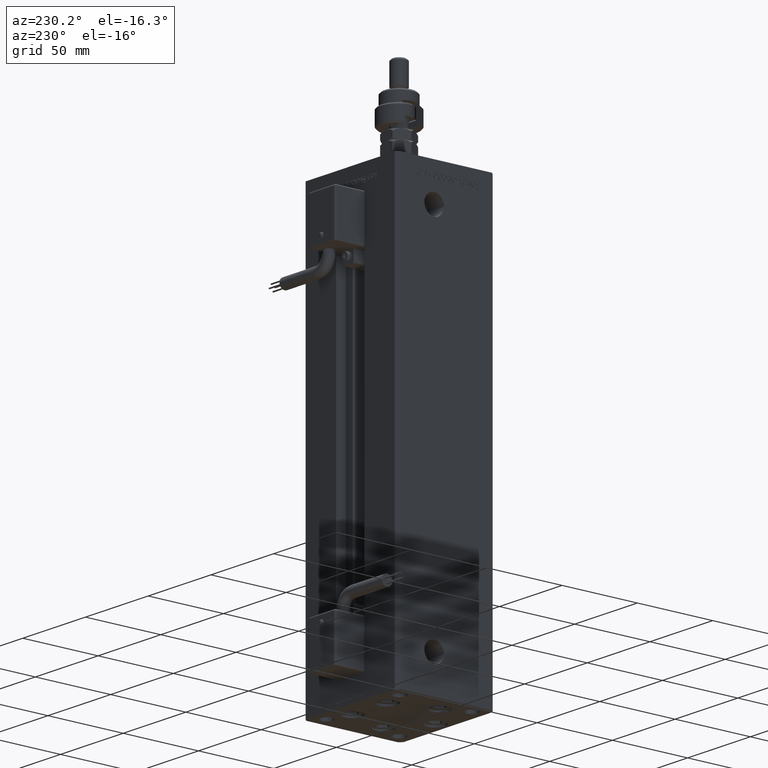
[diagram: clean part render]
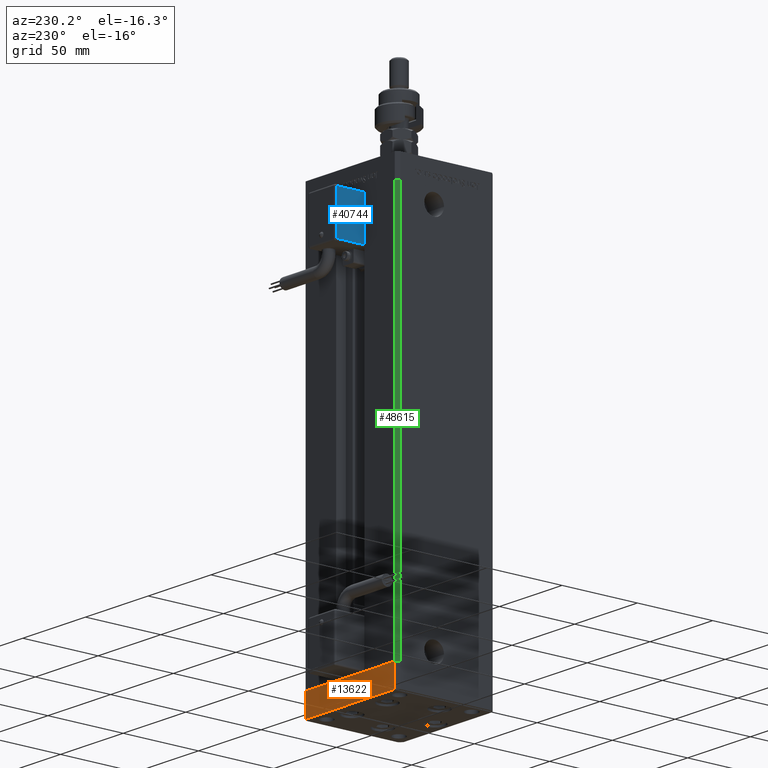
[diagram: same view with three faces highlighted in distinct colors, each labeled with its STEP entity id]
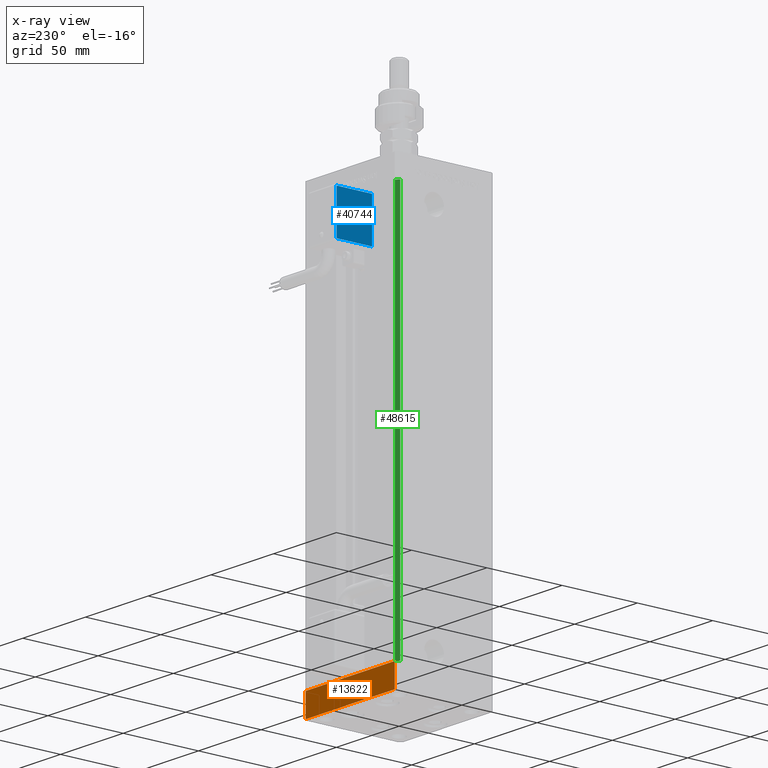
[diagram: x-ray of the same camera — body ghosted, the three highlighted faces saturated]
A machine part, auxiliary view with three faces highlighted in distinct colors.
The next image is the same camera in x-ray (body ghosted, the three faces saturated) — at least one of them is partly hidden behind the body in this view.
Their STEP definitions:

[orange] entity #13622 — the highlighted planar face has unit normal (0, 1, 0).
#666 = ORIENTED_EDGE ( 'NONE', *, *, #32265, .T. ) ;
#1304 = DIRECTION ( 'NONE',  ( 0.000000000000000000, 0.000000000000000000, 1.000000000000000000 ) ) ;
#4280 = EDGE_CURVE ( 'NONE', #51668, #8180, #35280, .T. ) ;
#5709 = CARTESIAN_POINT ( 'NONE',  ( 35.49999999999992184, 32.50000000000000711, -15.00000000000000000 ) ) ;
#7358 = CARTESIAN_POINT ( 'NONE',  ( -35.50000000000002842, 32.49999999999999289, 0.000000000000000000 ) ) ;
#8180 = VERTEX_POINT ( 'NONE', #41867 ) ;
#8402 = CARTESIAN_POINT ( 'NONE',  ( 35.49999999999992184, 32.50000000000000711, 0.000000000000000000 ) ) ;
#11033 = VECTOR ( 'NONE', #1304, 1000.000000000000000 ) ;
#12700 = CARTESIAN_POINT ( 'NONE',  ( 35.49999999999992184, 32.50000000000000711, -15.00000000000000000 ) ) ;
#13555 = EDGE_CURVE ( 'NONE', #51668, #33199, #28562, .T. ) ;
#13622 = ADVANCED_FACE ( 'NONE', ( #55823 ), #35509, .T. ) ;
#15461 = CARTESIAN_POINT ( 'NONE',  ( -35.50000000000002842, 32.49999999999999289, -15.00000000000000000 ) ) ;
#16252 = DIRECTION ( 'NONE',  ( -1.954618001100629052E-16, 1.000000000000000000, 0.000000000000000000 ) ) ;
#18361 = VECTOR ( 'NONE', #48754, 1000.000000000000000 ) ;
#18823 = EDGE_LOOP ( 'NONE', ( #19736, #39939, #41516, #666 ) ) ;
#19736 = ORIENTED_EDGE ( 'NONE', *, *, #48100, .F. ) ;
#25618 = VECTOR ( 'NONE', #45971, 1000.000000000000000 ) ;
#26011 = AXIS2_PLACEMENT_3D ( 'NONE', #33559, #16252, #42642 ) ;
#28562 = LINE ( 'NONE', #45885, #11033 ) ;
#32265 = EDGE_CURVE ( 'NONE', #8180, #34775, #41862, .T. ) ;
#33199 = VERTEX_POINT ( 'NONE', #37756 ) ;
#33559 = CARTESIAN_POINT ( 'NONE',  ( 35.49999999999992184, 32.50000000000000711, -15.00000000000000000 ) ) ;
#34775 = VERTEX_POINT ( 'NONE', #7358 ) ;
#35280 = LINE ( 'NONE', #12700, #18361 ) ;
#35509 = PLANE ( 'NONE',  #26011 ) ;
#37756 = CARTESIAN_POINT ( 'NONE',  ( 35.49999999999992184, 32.50000000000000711, 0.000000000000000000 ) ) ;
#39939 = ORIENTED_EDGE ( 'NONE', *, *, #13555, .F. ) ;
#41516 = ORIENTED_EDGE ( 'NONE', *, *, #4280, .T. ) ;
#41862 = LINE ( 'NONE', #15461, #25618 ) ;
#41867 = CARTESIAN_POINT ( 'NONE',  ( -35.50000000000002842, 32.49999999999999289, -15.00000000000000000 ) ) ;
#42642 = DIRECTION ( 'NONE',  ( -1.000000000000000000, -1.954618001100629052E-16, 0.000000000000000000 ) ) ;
#45885 = CARTESIAN_POINT ( 'NONE',  ( 35.49999999999992184, 32.50000000000000711, -15.00000000000000000 ) ) ;
#45971 = DIRECTION ( 'NONE',  ( 0.000000000000000000, 0.000000000000000000, 1.000000000000000000 ) ) ;
#47420 = LINE ( 'NONE', #8402, #51036 ) ;
#48100 = EDGE_CURVE ( 'NONE', #33199, #34775, #47420, .T. ) ;
#48577 = DIRECTION ( 'NONE',  ( -1.000000000000000000, -1.954618001100629052E-16, 0.000000000000000000 ) ) ;
#48754 = DIRECTION ( 'NONE',  ( -1.000000000000000000, -1.954618001100629052E-16, 0.000000000000000000 ) ) ;
#51036 = VECTOR ( 'NONE', #48577, 1000.000000000000000 ) ;
#51668 = VERTEX_POINT ( 'NONE', #5709 ) ;
#55823 = FACE_OUTER_BOUND ( 'NONE', #18823, .T. ) ;

[blue] entity #40744 — the highlighted planar face has unit normal (1, 0, 0).
#55 = CARTESIAN_POINT ( 'NONE',  ( -10.80000000000000071, 27.00000000000000000, -54.00000000000000000 ) ) ;
#2449 = ORIENTED_EDGE ( 'NONE', *, *, #42541, .T. ) ;
#3397 = FACE_OUTER_BOUND ( 'NONE', #31845, .T. ) ;
#5596 = VERTEX_POINT ( 'NONE', #52658 ) ;
#6223 = DIRECTION ( 'NONE',  ( -2.220446049250000002E-16, -1.200000000000000024E-16, 1.000000000000000000 ) ) ;
#7204 = ORIENTED_EDGE ( 'NONE', *, *, #49253, .T. ) ;
#8370 = DIRECTION ( 'NONE',  ( 1.000000000000000000, 4.930380657629929601E-32, 1.094764425253299406E-47 ) ) ;
#8937 = CARTESIAN_POINT ( 'NONE',  ( -10.80000000000000071, 26.00000000000000000, -55.00000000000000000 ) ) ;
#10315 = EDGE_CURVE ( 'NONE', #5596, #22342, #31085, .T. ) ;
#13865 = LINE ( 'NONE', #49058, #44557 ) ;
#16214 = VERTEX_POINT ( 'NONE', #33750 ) ;
#20863 = LINE ( 'NONE', #34658, #37992 ) ;
#21692 = CARTESIAN_POINT ( 'NONE',  ( -10.80000000000000071, 27.00000000000000000, -26.00000000000000000 ) ) ;
#22342 = VERTEX_POINT ( 'NONE', #55 ) ;
#22848 = DIRECTION ( 'NONE',  ( 3.108624468950000014E-32, -1.000000000000000000, -1.400000000000000069E-16 ) ) ;
#27491 = VERTEX_POINT ( 'NONE', #21692 ) ;
#28487 = LINE ( 'NONE', #46391, #56436 ) ;
#29226 = AXIS2_PLACEMENT_3D ( 'NONE', #8937, #8370, #57610 ) ;
#30389 = ORIENTED_EDGE ( 'NONE', *, *, #52932, .T. ) ;
#31085 = LINE ( 'NONE', #31951, #38032 ) ;
#31845 = EDGE_LOOP ( 'NONE', ( #30389, #7204, #49495, #2449 ) ) ;
#31951 = CARTESIAN_POINT ( 'NONE',  ( -10.80000000000000071, 26.00000000000000000, -54.00000000000000000 ) ) ;
#33750 = CARTESIAN_POINT ( 'NONE',  ( -10.80000000000000071, 50.50000000000000000, -26.00000000000000000 ) ) ;
#34658 = CARTESIAN_POINT ( 'NONE',  ( -10.80000000000000071, 26.00000000000000000, -26.00000000000000000 ) ) ;
#35070 = PLANE ( 'NONE',  #29226 ) ;
#37992 = VECTOR ( 'NONE', #43436, 1000.000000000000000 ) ;
#38032 = VECTOR ( 'NONE', #22848, 1000.000000000000000 ) ;
#40744 = ADVANCED_FACE ( 'NONE', ( #3397 ), #35070, .F. ) ;
#42541 = EDGE_CURVE ( 'NONE', #22342, #27491, #28487, .T. ) ;
#43436 = DIRECTION ( 'NONE',  ( -3.108624468950000014E-32, 1.000000000000000000, 1.400000000000000069E-16 ) ) ;
#44557 = VECTOR ( 'NONE', #57838, 1000.000000000000000 ) ;
#46391 = CARTESIAN_POINT ( 'NONE',  ( -10.80000000000000071, 27.00000000000000000, -55.00000000000000000 ) ) ;
#49058 = CARTESIAN_POINT ( 'NONE',  ( -10.80000000000000071, 50.50000000000000000, -55.00000000000000000 ) ) ;
#49253 = EDGE_CURVE ( 'NONE', #16214, #5596, #13865, .T. ) ;
#49495 = ORIENTED_EDGE ( 'NONE', *, *, #10315, .T. ) ;
#52658 = CARTESIAN_POINT ( 'NONE',  ( -10.80000000000000071, 50.50000000000000000, -54.00000000000000000 ) ) ;
#52932 = EDGE_CURVE ( 'NONE', #27491, #16214, #20863, .T. ) ;
#56436 = VECTOR ( 'NONE', #6223, 1000.000000000000000 ) ;
#57610 = DIRECTION ( 'NONE',  ( 0.000000000000000000, -2.220446049250000002E-16, 1.000000000000000000 ) ) ;
#57838 = DIRECTION ( 'NONE',  ( 2.220446049250000002E-16, 1.200000000000000024E-16, -1.000000000000000000 ) ) ;

[green] entity #48615 — the highlighted planar face has unit normal (0.7071, -0.7071, 0).
#1194 = PLANE ( 'NONE',  #53869 ) ;
#1470 = CARTESIAN_POINT ( 'NONE',  ( -35.50000000000000000, 32.49999999999999289, 256.0000000000000000 ) ) ;
#3131 = LINE ( 'NONE', #29223, #55886 ) ;
#3168 = CARTESIAN_POINT ( 'NONE',  ( -35.50000000000000000, 32.49999999999999289, 0.000000000000000000 ) ) ;
#6820 = ORIENTED_EDGE ( 'NONE', *, *, #38175, .F. ) ;
#7622 = VECTOR ( 'NONE', #10943, 1000.000000000000000 ) ;
#8610 = DIRECTION ( 'NONE',  ( 0.7071067811865500152, 0.7071067811865451302, 0.000000000000000000 ) ) ;
#10943 = DIRECTION ( 'NONE',  ( -0.000000000000000000, -0.000000000000000000, -1.000000000000000000 ) ) ;
#12410 = EDGE_LOOP ( 'NONE', ( #56419, #6820, #44597, #21762 ) ) ;
#12455 = EDGE_CURVE ( 'NONE', #55190, #23769, #3131, .T. ) ;
#12807 = VERTEX_POINT ( 'NONE', #50767 ) ;
#13683 = CARTESIAN_POINT ( 'NONE',  ( -37.50000000000000711, 30.50000000000000000, 256.0000000000000000 ) ) ;
#15959 = CARTESIAN_POINT ( 'NONE',  ( -35.50000000000000000, 32.49999999999999289, 0.000000000000000000 ) ) ;
#16339 = DIRECTION ( 'NONE',  ( -0.000000000000000000, -0.000000000000000000, -1.000000000000000000 ) ) ;
#20609 = LINE ( 'NONE', #47586, #7622 ) ;
#21035 = VERTEX_POINT ( 'NONE', #13683 ) ;
#21762 = ORIENTED_EDGE ( 'NONE', *, *, #12455, .T. ) ;
#22468 = EDGE_CURVE ( 'NONE', #23769, #12807, #38664, .T. ) ;
#23479 = DIRECTION ( 'NONE',  ( 0.7071067811865451302, -0.7071067811865500152, 0.000000000000000000 ) ) ;
#23769 = VERTEX_POINT ( 'NONE', #15959 ) ;
#28430 = LINE ( 'NONE', #1470, #33068 ) ;
#29223 = CARTESIAN_POINT ( 'NONE',  ( -35.50000000000000000, 32.49999999999999289, 256.0000000000000000 ) ) ;
#31956 = EDGE_CURVE ( 'NONE', #55190, #21035, #28430, .T. ) ;
#32846 = DIRECTION ( 'NONE',  ( -0.7071067811865500152, -0.7071067811865451302, 0.000000000000000000 ) ) ;
#33068 = VECTOR ( 'NONE', #32846, 1000.000000000000114 ) ;
#38175 = EDGE_CURVE ( 'NONE', #21035, #12807, #20609, .T. ) ;
#38664 = LINE ( 'NONE', #3168, #57097 ) ;
#44597 = ORIENTED_EDGE ( 'NONE', *, *, #31956, .F. ) ;
#44676 = CARTESIAN_POINT ( 'NONE',  ( -35.50000000000000000, 32.49999999999999289, 256.0000000000000000 ) ) ;
#47156 = DIRECTION ( 'NONE',  ( -0.7071067811865500152, -0.7071067811865451302, 0.000000000000000000 ) ) ;
#47586 = CARTESIAN_POINT ( 'NONE',  ( -37.50000000000000711, 30.50000000000000000, 256.0000000000000000 ) ) ;
#48615 = ADVANCED_FACE ( 'NONE', ( #50175 ), #1194, .F. ) ;
#50175 = FACE_OUTER_BOUND ( 'NONE', #12410, .T. ) ;
#50767 = CARTESIAN_POINT ( 'NONE',  ( -37.50000000000000711, 30.50000000000000000, 0.000000000000000000 ) ) ;
#53112 = CARTESIAN_POINT ( 'NONE',  ( -35.50000000000000000, 32.49999999999999289, 256.0000000000000000 ) ) ;
#53869 = AXIS2_PLACEMENT_3D ( 'NONE', #44676, #23479, #8610 ) ;
#55190 = VERTEX_POINT ( 'NONE', #53112 ) ;
#55886 = VECTOR ( 'NONE', #16339, 1000.000000000000000 ) ;
#56419 = ORIENTED_EDGE ( 'NONE', *, *, #22468, .T. ) ;
#57097 = VECTOR ( 'NONE', #47156, 1000.000000000000114 ) ;